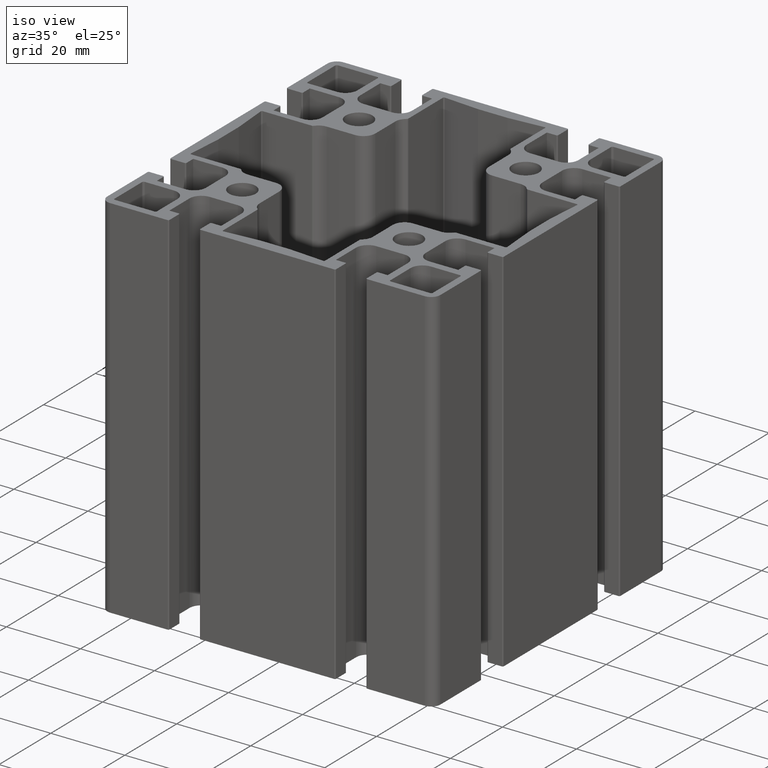
[diagram: clean part render]
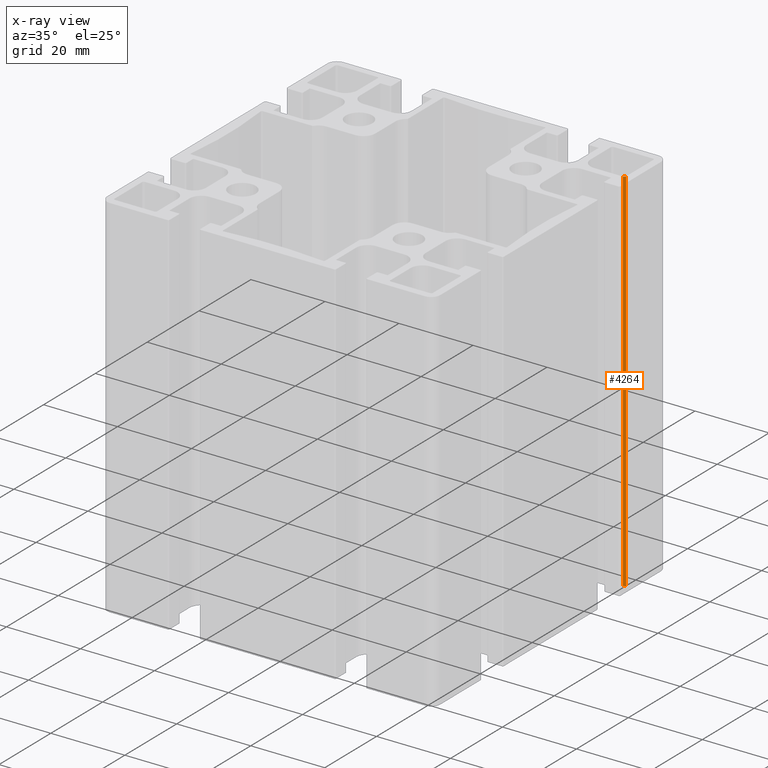
[diagram: x-ray — body ghosted, one internal face saturated and labeled with its STEP entity id]
A machine part, iso view, then the same camera in x-ray: the body is ghosted and one INTERNAL B-rep face — a face not visible from any outside direction — is saturated and labeled: STEP entity #4264.
In plain terms, the highlighted cylindrical surface (edge-blend (fillet) strip) has radius 0.5 mm, axis along (0, 0, 1).
Its self-contained STEP definition (entity closure, byte-faithful):
#211=CIRCLE('',#4655,0.5);
#212=CIRCLE('',#4656,0.5);
#324=CYLINDRICAL_SURFACE('',#4654,0.5);
#516=FACE_OUTER_BOUND('',#734,.T.);
#734=EDGE_LOOP('',(#3415,#3416,#3417,#3418));
#1142=LINE('',#7038,#1574);
#1153=LINE('',#7073,#1585);
#1574=VECTOR('',#5754,100.);
#1585=VECTOR('',#5789,100.);
#2012=VERTEX_POINT('',#7032);
#2014=VERTEX_POINT('',#7036);
#2025=VERTEX_POINT('',#7070);
#2026=VERTEX_POINT('',#7072);
#2598=EDGE_CURVE('',#2014,#2012,#1142,.T.);
#2615=EDGE_CURVE('',#2026,#2025,#1153,.T.);
#2617=EDGE_CURVE('',#2012,#2025,#211,.T.);
#2618=EDGE_CURVE('',#2026,#2014,#212,.T.);
#3415=ORIENTED_EDGE('',*,*,#2617,.F.);
#3416=ORIENTED_EDGE('',*,*,#2598,.F.);
#3417=ORIENTED_EDGE('',*,*,#2618,.F.);
#3418=ORIENTED_EDGE('',*,*,#2615,.T.);
#4264=ADVANCED_FACE('',(#516),#324,.F.);
#4654=AXIS2_PLACEMENT_3D('',#7075,#5791,#5792);
#4655=AXIS2_PLACEMENT_3D('',#7076,#5793,#5794);
#4656=AXIS2_PLACEMENT_3D('',#7077,#5795,#5796);
#5754=DIRECTION('',(0.,0.,1.));
#5789=DIRECTION('',(0.,0.,1.));
#5791=DIRECTION('center_axis',(0.,0.,1.));
#5792=DIRECTION('ref_axis',(0.,-1.,0.));
#5793=DIRECTION('center_axis',(0.,0.,-1.));
#5794=DIRECTION('ref_axis',(0.,-1.,0.));
#5795=DIRECTION('center_axis',(0.,0.,1.));
#5796=DIRECTION('ref_axis',(0.,-1.,0.));
#7032=CARTESIAN_POINT('',(43.,32.,100.));
#7036=CARTESIAN_POINT('',(43.,32.,0.));
#7038=CARTESIAN_POINT('',(43.,32.,0.));
#7070=CARTESIAN_POINT('',(42.5,31.5,100.));
#7072=CARTESIAN_POINT('',(42.5,31.5,0.));
#7073=CARTESIAN_POINT('',(42.5,31.5,0.));
#7075=CARTESIAN_POINT('Origin',(42.5,32.,0.));
#7076=CARTESIAN_POINT('Origin',(42.5,32.,100.));
#7077=CARTESIAN_POINT('Origin',(42.5,32.,0.));